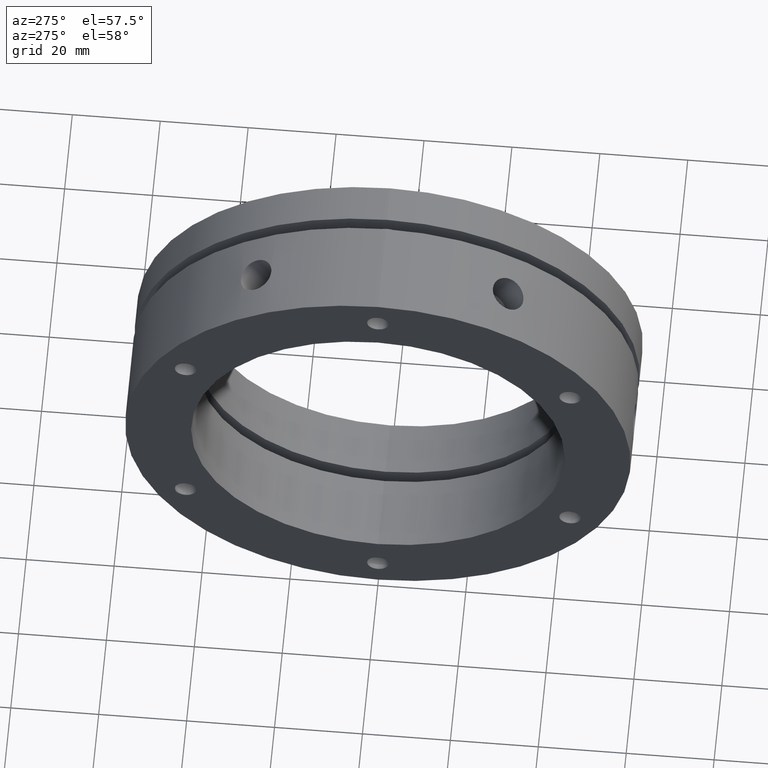
[diagram: clean part render]
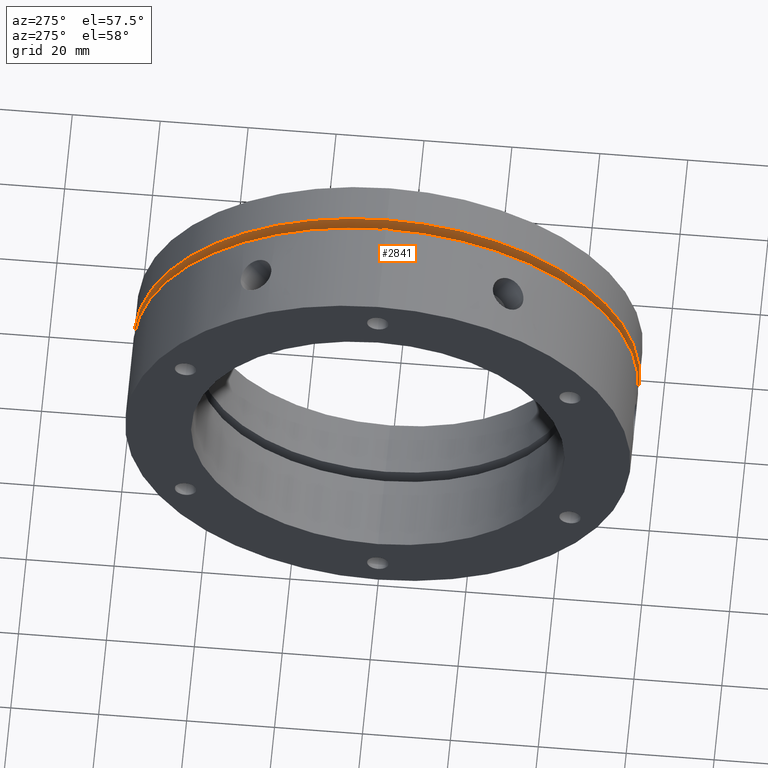
[diagram: same view with one face highlighted and labeled with its STEP entity id]
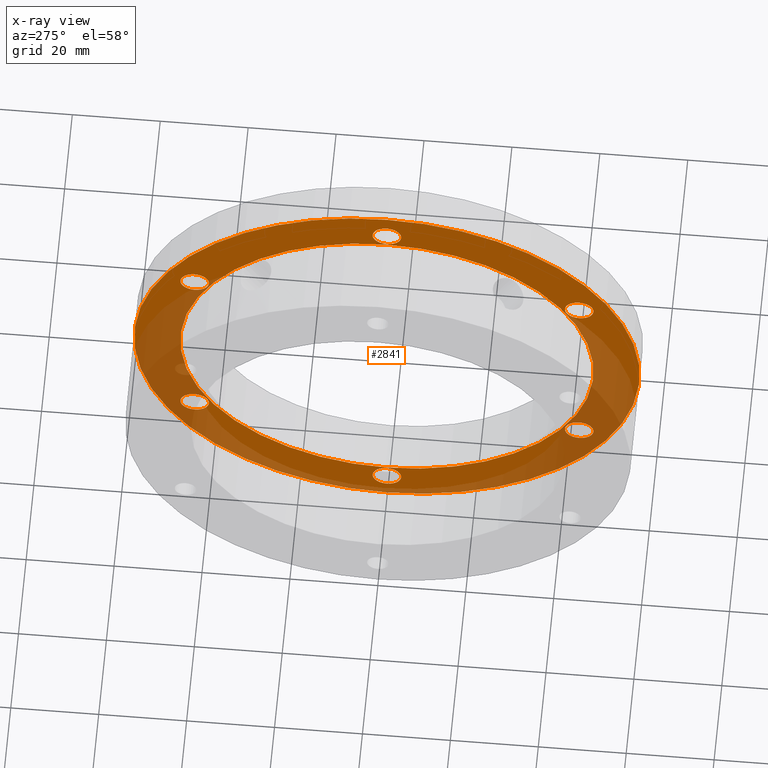
[diagram: x-ray of the same camera — body ghosted, the highlighted face saturated]
A machine part, auxiliary view. The second image highlights one B-rep face of the part: STEP entity #2841.
The next image is the same camera in x-ray: the body ghosted, the highlighted face saturated — about 39% of this face is hidden behind the body in this view.
In plain terms, the highlighted planar face has unit normal (1, 0, 0).
Its self-contained STEP definition (entity closure, byte-faithful):
#72 = EDGE_LOOP ( 'NONE', ( #1010, #1009 ) ) ;
#101 = EDGE_LOOP ( 'NONE', ( #1001, #1000 ) ) ;
#126 = EDGE_LOOP ( 'NONE', ( #1007, #1006 ) ) ;
#131 = EDGE_LOOP ( 'NONE', ( #1016, #1015 ) ) ;
#153 = EDGE_LOOP ( 'NONE', ( #1018, #1017 ) ) ;
#167 = EDGE_LOOP ( 'NONE', ( #1014, #1013 ) ) ;
#215 = EDGE_LOOP ( 'NONE', ( #1004, #1003 ) ) ;
#223 = EDGE_LOOP ( 'NONE', ( #1012, #1011 ) ) ;
#345 = VERTEX_POINT ( 'NONE', #1336 ) ;
#408 = VERTEX_POINT ( 'NONE', #1399 ) ;
#434 = VERTEX_POINT ( 'NONE', #1816 ) ;
#444 = VERTEX_POINT ( 'NONE', #1826 ) ;
#446 = VERTEX_POINT ( 'NONE', #1828 ) ;
#449 = VERTEX_POINT ( 'NONE', #1831 ) ;
#451 = VERTEX_POINT ( 'NONE', #1833 ) ;
#457 = VERTEX_POINT ( 'NONE', #1839 ) ;
#458 = VERTEX_POINT ( 'NONE', #1840 ) ;
#463 = VERTEX_POINT ( 'NONE', #1845 ) ;
#464 = VERTEX_POINT ( 'NONE', #1846 ) ;
#467 = VERTEX_POINT ( 'NONE', #1849 ) ;
#468 = VERTEX_POINT ( 'NONE', #1850 ) ;
#473 = VERTEX_POINT ( 'NONE', #1855 ) ;
#481 = VERTEX_POINT ( 'NONE', #1863 ) ;
#483 = VERTEX_POINT ( 'NONE', #1865 ) ;
#554 = AXIS2_PLACEMENT_3D ( 'NONE', #2326, #2327, #2328 ) ;
#648 = EDGE_CURVE ( 'NONE', #345, #408, #4242, .T. ) ;
#680 = EDGE_CURVE ( 'NONE', #483, #481, #4286, .T. ) ;
#684 = EDGE_CURVE ( 'NONE', #473, #468, #4295, .T. ) ;
#688 = EDGE_CURVE ( 'NONE', #467, #464, #4301, .T. ) ;
#692 = EDGE_CURVE ( 'NONE', #463, #458, #4307, .T. ) ;
#696 = EDGE_CURVE ( 'NONE', #457, #451, #4313, .T. ) ;
#700 = EDGE_CURVE ( 'NONE', #449, #446, #4319, .T. ) ;
#704 = EDGE_CURVE ( 'NONE', #444, #434, #4325, .T. ) ;
#749 = AXIS2_PLACEMENT_3D ( 'NONE', #2455, #2456, #2457 ) ;
#753 = AXIS2_PLACEMENT_3D ( 'NONE', #2466, #2467, #2468 ) ;
#758 = AXIS2_PLACEMENT_3D ( 'NONE', #2445, #2446, #2447 ) ;
#792 = AXIS2_PLACEMENT_3D ( 'NONE', #2986, #2987, #2988 ) ;
#794 = AXIS2_PLACEMENT_3D ( 'NONE', #2983, #2984, #2985 ) ;
#797 = AXIS2_PLACEMENT_3D ( 'NONE', #2980, #2981, #2982 ) ;
#810 = AXIS2_PLACEMENT_3D ( 'NONE', #2977, #2978, #2979 ) ;
#812 = AXIS2_PLACEMENT_3D ( 'NONE', #2974, #2975, #2976 ) ;
#813 = AXIS2_PLACEMENT_3D ( 'NONE', #2971, #2972, #2973 ) ;
#846 = AXIS2_PLACEMENT_3D ( 'NONE', #2415, #2416, #2417 ) ;
#847 = AXIS2_PLACEMENT_3D ( 'NONE', #2405, #2406, #2407 ) ;
#853 = AXIS2_PLACEMENT_3D ( 'NONE', #2736, #2737, #2738 ) ;
#857 = AXIS2_PLACEMENT_3D ( 'NONE', #2435, #2436, #2437 ) ;
#860 = AXIS2_PLACEMENT_3D ( 'NONE', #2425, #2426, #2427 ) ;
#1000 = ORIENTED_EDGE ( 'NONE', *, *, #1678, .F. ) ;
#1001 = ORIENTED_EDGE ( 'NONE', *, *, #704, .F. ) ;
#1003 = ORIENTED_EDGE ( 'NONE', *, *, #1679, .F. ) ;
#1004 = ORIENTED_EDGE ( 'NONE', *, *, #700, .F. ) ;
#1006 = ORIENTED_EDGE ( 'NONE', *, *, #1680, .F. ) ;
#1007 = ORIENTED_EDGE ( 'NONE', *, *, #696, .F. ) ;
#1009 = ORIENTED_EDGE ( 'NONE', *, *, #1681, .F. ) ;
#1010 = ORIENTED_EDGE ( 'NONE', *, *, #692, .F. ) ;
#1011 = ORIENTED_EDGE ( 'NONE', *, *, #1682, .F. ) ;
#1012 = ORIENTED_EDGE ( 'NONE', *, *, #688, .F. ) ;
#1013 = ORIENTED_EDGE ( 'NONE', *, *, #1683, .F. ) ;
#1014 = ORIENTED_EDGE ( 'NONE', *, *, #684, .F. ) ;
#1015 = ORIENTED_EDGE ( 'NONE', *, *, #1736, .F. ) ;
#1016 = ORIENTED_EDGE ( 'NONE', *, *, #680, .F. ) ;
#1017 = ORIENTED_EDGE ( 'NONE', *, *, #1652, .F. ) ;
#1018 = ORIENTED_EDGE ( 'NONE', *, *, #648, .F. ) ;
#1101 = AXIS2_PLACEMENT_3D ( 'NONE', #3190, #3191, #3192 ) ;
#1336 = CARTESIAN_POINT ( 'NONE',  ( 23.49999999999999300, 0.0000000000000000000, 47.00000000000000000 ) ) ;
#1399 = CARTESIAN_POINT ( 'NONE',  ( 23.49999999999999300, 5.755839955992560600E-015, -47.00000000000000000 ) ) ;
#1652 = EDGE_CURVE ( 'NONE', #408, #345, #4460, .T. ) ;
#1678 = EDGE_CURVE ( 'NONE', #434, #444, #4488, .T. ) ;
#1679 = EDGE_CURVE ( 'NONE', #446, #449, #4489, .T. ) ;
#1680 = EDGE_CURVE ( 'NONE', #451, #457, #4490, .T. ) ;
#1681 = EDGE_CURVE ( 'NONE', #458, #463, #4491, .T. ) ;
#1682 = EDGE_CURVE ( 'NONE', #464, #467, #4492, .T. ) ;
#1683 = EDGE_CURVE ( 'NONE', #468, #473, #4493, .T. ) ;
#1736 = EDGE_CURVE ( 'NONE', #481, #483, #4563, .T. ) ;
#1796 = AXIS2_PLACEMENT_3D ( 'NONE', #3333, #3331, #3337 ) ;
#1816 = CARTESIAN_POINT ( 'NONE',  ( 23.49999999999999300, 7.041719095097280500E-015, 57.50000000000000000 ) ) ;
#1826 = CARTESIAN_POINT ( 'NONE',  ( 23.49999999999999300, 0.0000000000000000000, -57.50000000000000000 ) ) ;
#1828 = CARTESIAN_POINT ( 'NONE',  ( 23.49999999999999300, 43.73428289111419800, 28.49999999999997900 ) ) ;
#1831 = CARTESIAN_POINT ( 'NONE',  ( 23.49999999999999300, 43.73428289111419800, 21.99999999999998200 ) ) ;
#1833 = CARTESIAN_POINT ( 'NONE',  ( 23.49999999999999300, 43.73428289111416200, -22.00000000000003600 ) ) ;
#1839 = CARTESIAN_POINT ( 'NONE',  ( 23.49999999999999300, 43.73428289111416200, -28.50000000000003600 ) ) ;
#1840 = CARTESIAN_POINT ( 'NONE',  ( 23.49999999999999300, -8.483773790277109000E-015, -47.25000000000003600 ) ) ;
#1845 = CARTESIAN_POINT ( 'NONE',  ( 23.49999999999999300, -8.881783999999999800E-015, -53.75000000000004300 ) ) ;
#1846 = CARTESIAN_POINT ( 'NONE',  ( 23.49999999999999300, -43.73428289111417700, -22.00000000000000700 ) ) ;
#1849 = CARTESIAN_POINT ( 'NONE',  ( 23.49999999999999300, -43.73428289111417700, -28.50000000000000400 ) ) ;
#1850 = CARTESIAN_POINT ( 'NONE',  ( 23.49999999999999300, -43.73428289111416900, 28.50000000000001800 ) ) ;
#1855 = CARTESIAN_POINT ( 'NONE',  ( 23.49999999999999300, -43.73428289111416900, 22.00000000000002100 ) ) ;
#1863 = CARTESIAN_POINT ( 'NONE',  ( 23.49999999999999300, 3.980102097228895300E-016, 53.75000000000003600 ) ) ;
#1865 = CARTESIAN_POINT ( 'NONE',  ( 23.49999999999999300, 0.0000000000000000000, 47.25000000000002800 ) ) ;
#2326 = CARTESIAN_POINT ( 'NONE',  ( 23.49999999999999300, 0.0000000000000000000, 0.0000000000000000000 ) ) ;
#2327 = DIRECTION ( 'NONE',  ( -1.000000000000000000, 0.0000000000000000000, 0.0000000000000000000 ) ) ;
#2328 = DIRECTION ( 'NONE',  ( 0.0000000000000000000, 0.0000000000000000000, 1.000000000000000000 ) ) ;
#2405 = CARTESIAN_POINT ( 'NONE',  ( 23.49999999999999300, 0.0000000000000000000, 50.50000000000002800 ) ) ;
#2406 = DIRECTION ( 'NONE',  ( -1.000000000000000000, -0.0000000000000000000, -0.0000000000000000000 ) ) ;
#2407 = DIRECTION ( 'NONE',  ( 0.0000000000000000000, 0.0000000000000000000, -1.000000000000000000 ) ) ;
#2415 = CARTESIAN_POINT ( 'NONE',  ( 23.49999999999999300, -43.73428289111416900, 25.25000000000001800 ) ) ;
#2416 = DIRECTION ( 'NONE',  ( -1.000000000000000000, -0.0000000000000000000, -0.0000000000000000000 ) ) ;
#2417 = DIRECTION ( 'NONE',  ( 0.0000000000000000000, 0.0000000000000000000, -1.000000000000000000 ) ) ;
#2425 = CARTESIAN_POINT ( 'NONE',  ( 23.49999999999999300, -43.73428289111417700, -25.25000000000000400 ) ) ;
#2426 = DIRECTION ( 'NONE',  ( -1.000000000000000000, -0.0000000000000000000, -0.0000000000000000000 ) ) ;
#2427 = DIRECTION ( 'NONE',  ( 0.0000000000000000000, 0.0000000000000000000, -1.000000000000000000 ) ) ;
#2435 = CARTESIAN_POINT ( 'NONE',  ( 23.49999999999999300, -8.881783999999999800E-015, -50.50000000000003600 ) ) ;
#2436 = DIRECTION ( 'NONE',  ( -1.000000000000000000, -0.0000000000000000000, -0.0000000000000000000 ) ) ;
#2437 = DIRECTION ( 'NONE',  ( 0.0000000000000000000, 0.0000000000000000000, -1.000000000000000000 ) ) ;
#2445 = CARTESIAN_POINT ( 'NONE',  ( 23.49999999999999300, 43.73428289111416200, -25.25000000000003600 ) ) ;
#2446 = DIRECTION ( 'NONE',  ( -1.000000000000000000, -0.0000000000000000000, -0.0000000000000000000 ) ) ;
#2447 = DIRECTION ( 'NONE',  ( 0.0000000000000000000, 0.0000000000000000000, -1.000000000000000000 ) ) ;
#2455 = CARTESIAN_POINT ( 'NONE',  ( 23.49999999999999300, 43.73428289111419800, 25.24999999999998200 ) ) ;
#2456 = DIRECTION ( 'NONE',  ( -1.000000000000000000, -0.0000000000000000000, -0.0000000000000000000 ) ) ;
#2457 = DIRECTION ( 'NONE',  ( 0.0000000000000000000, 0.0000000000000000000, -1.000000000000000000 ) ) ;
#2466 = CARTESIAN_POINT ( 'NONE',  ( 23.49999999999999300, 0.0000000000000000000, 0.0000000000000000000 ) ) ;
#2467 = DIRECTION ( 'NONE',  ( 1.000000000000000000, 0.0000000000000000000, 0.0000000000000000000 ) ) ;
#2468 = DIRECTION ( 'NONE',  ( 0.0000000000000000000, 0.0000000000000000000, -1.000000000000000000 ) ) ;
#2736 = CARTESIAN_POINT ( 'NONE',  ( 23.49999999999999300, 0.0000000000000000000, 0.0000000000000000000 ) ) ;
#2737 = DIRECTION ( 'NONE',  ( -1.000000000000000000, 0.0000000000000000000, 0.0000000000000000000 ) ) ;
#2738 = DIRECTION ( 'NONE',  ( 0.0000000000000000000, 0.0000000000000000000, 1.000000000000000000 ) ) ;
#2841 = ADVANCED_FACE ( 'NONE', ( #4666, #4670, #4667, #4669, #4668, #4671, #4672, #4673 ), #3335, .F. ) ;
#2971 = CARTESIAN_POINT ( 'NONE',  ( 23.49999999999999300, 0.0000000000000000000, 0.0000000000000000000 ) ) ;
#2972 = DIRECTION ( 'NONE',  ( 1.000000000000000000, 0.0000000000000000000, 0.0000000000000000000 ) ) ;
#2973 = DIRECTION ( 'NONE',  ( 0.0000000000000000000, 0.0000000000000000000, -1.000000000000000000 ) ) ;
#2974 = CARTESIAN_POINT ( 'NONE',  ( 23.49999999999999300, 43.73428289111419800, 25.24999999999998200 ) ) ;
#2975 = DIRECTION ( 'NONE',  ( -1.000000000000000000, -0.0000000000000000000, -0.0000000000000000000 ) ) ;
#2976 = DIRECTION ( 'NONE',  ( 0.0000000000000000000, 0.0000000000000000000, -1.000000000000000000 ) ) ;
#2977 = CARTESIAN_POINT ( 'NONE',  ( 23.49999999999999300, 43.73428289111416200, -25.25000000000003600 ) ) ;
#2978 = DIRECTION ( 'NONE',  ( -1.000000000000000000, -0.0000000000000000000, -0.0000000000000000000 ) ) ;
#2979 = DIRECTION ( 'NONE',  ( 0.0000000000000000000, 0.0000000000000000000, -1.000000000000000000 ) ) ;
#2980 = CARTESIAN_POINT ( 'NONE',  ( 23.49999999999999300, -8.881783999999999800E-015, -50.50000000000003600 ) ) ;
#2981 = DIRECTION ( 'NONE',  ( -1.000000000000000000, -0.0000000000000000000, -0.0000000000000000000 ) ) ;
#2982 = DIRECTION ( 'NONE',  ( 0.0000000000000000000, 0.0000000000000000000, -1.000000000000000000 ) ) ;
#2983 = CARTESIAN_POINT ( 'NONE',  ( 23.49999999999999300, -43.73428289111417700, -25.25000000000000400 ) ) ;
#2984 = DIRECTION ( 'NONE',  ( -1.000000000000000000, -0.0000000000000000000, -0.0000000000000000000 ) ) ;
#2985 = DIRECTION ( 'NONE',  ( 0.0000000000000000000, 0.0000000000000000000, -1.000000000000000000 ) ) ;
#2986 = CARTESIAN_POINT ( 'NONE',  ( 23.49999999999999300, -43.73428289111416900, 25.25000000000001800 ) ) ;
#2987 = DIRECTION ( 'NONE',  ( -1.000000000000000000, -0.0000000000000000000, -0.0000000000000000000 ) ) ;
#2988 = DIRECTION ( 'NONE',  ( 0.0000000000000000000, 0.0000000000000000000, -1.000000000000000000 ) ) ;
#3190 = CARTESIAN_POINT ( 'NONE',  ( 23.49999999999999300, 0.0000000000000000000, 50.50000000000002800 ) ) ;
#3191 = DIRECTION ( 'NONE',  ( -1.000000000000000000, -0.0000000000000000000, -0.0000000000000000000 ) ) ;
#3192 = DIRECTION ( 'NONE',  ( 0.0000000000000000000, 0.0000000000000000000, -1.000000000000000000 ) ) ;
#3331 = DIRECTION ( 'NONE',  ( 1.000000000000000000, -0.0000000000000000000, 0.0000000000000000000 ) ) ;
#3333 = CARTESIAN_POINT ( 'NONE',  ( 23.49999999999999300, 52.25000000000000000, 0.0000000000000000000 ) ) ;
#3335 = PLANE ( 'NONE',  #1796 ) ;
#3337 = DIRECTION ( 'NONE',  ( 0.0000000000000000000, 0.0000000000000000000, -1.000000000000000000 ) ) ;
#4242 = CIRCLE ( 'NONE', #554, 47.00000000000000000 ) ;
#4286 = CIRCLE ( 'NONE', #847, 3.250000000000002700 ) ;
#4295 = CIRCLE ( 'NONE', #846, 3.249999999999999600 ) ;
#4301 = CIRCLE ( 'NONE', #860, 3.249999999999999600 ) ;
#4307 = CIRCLE ( 'NONE', #857, 3.250000000000002700 ) ;
#4313 = CIRCLE ( 'NONE', #758, 3.249999999999999600 ) ;
#4319 = CIRCLE ( 'NONE', #749, 3.249999999999999600 ) ;
#4325 = CIRCLE ( 'NONE', #753, 57.50000000000000000 ) ;
#4460 = CIRCLE ( 'NONE', #853, 47.00000000000000000 ) ;
#4488 = CIRCLE ( 'NONE', #813, 57.50000000000000000 ) ;
#4489 = CIRCLE ( 'NONE', #812, 3.249999999999999600 ) ;
#4490 = CIRCLE ( 'NONE', #810, 3.249999999999999600 ) ;
#4491 = CIRCLE ( 'NONE', #797, 3.250000000000002700 ) ;
#4492 = CIRCLE ( 'NONE', #794, 3.249999999999999600 ) ;
#4493 = CIRCLE ( 'NONE', #792, 3.249999999999999600 ) ;
#4563 = CIRCLE ( 'NONE', #1101, 3.250000000000002700 ) ;
#4666 = FACE_BOUND ( 'NONE', #153, .T. ) ;
#4667 = FACE_BOUND ( 'NONE', #167, .T. ) ;
#4668 = FACE_BOUND ( 'NONE', #72, .T. ) ;
#4669 = FACE_BOUND ( 'NONE', #223, .T. ) ;
#4670 = FACE_BOUND ( 'NONE', #131, .T. ) ;
#4671 = FACE_BOUND ( 'NONE', #126, .T. ) ;
#4672 = FACE_BOUND ( 'NONE', #215, .T. ) ;
#4673 = FACE_OUTER_BOUND ( 'NONE', #101, .T. ) ;